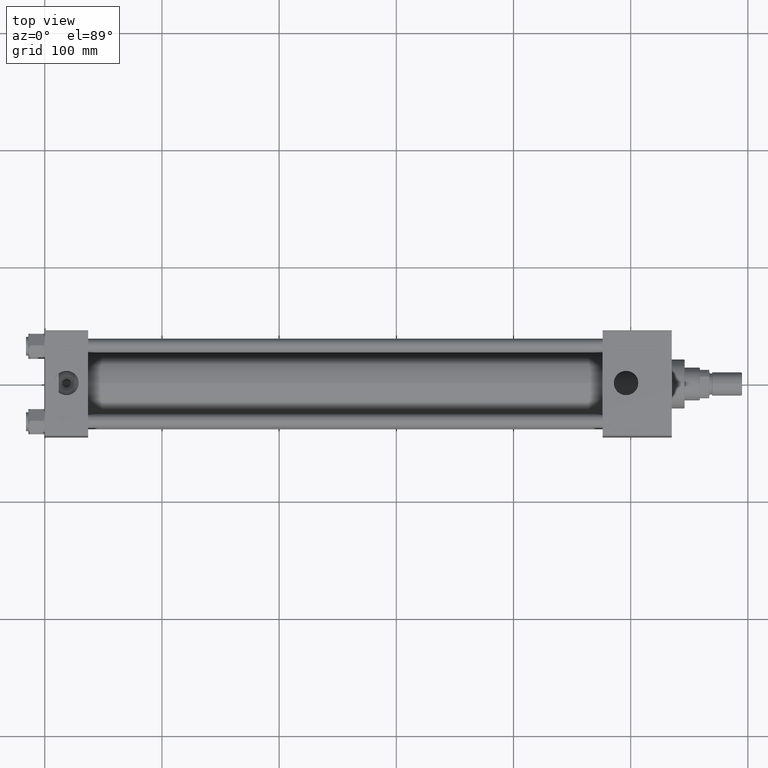
[diagram: clean part render]
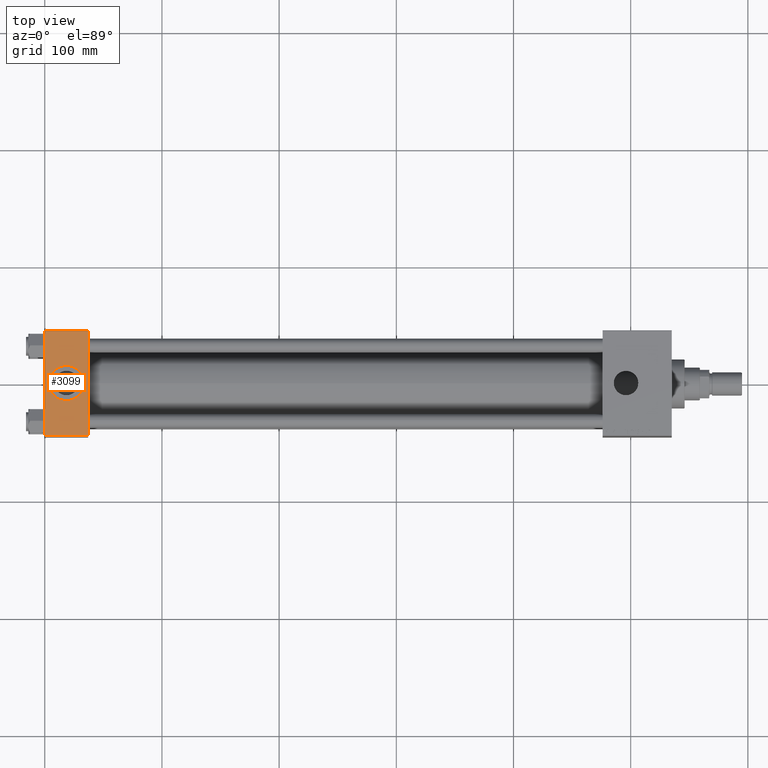
[diagram: same view with one face highlighted and labeled with its STEP entity id]
A machine part, top view. The second image highlights one B-rep face of the part: STEP entity #3099.
In plain terms, the highlighted planar face has unit normal (0, 0, -1).
Its self-contained STEP definition (entity closure, byte-faithful):
#902 = EDGE_CURVE ( 'NONE', #34534, #28438, #28402, .T. ) ;
#3099 = ADVANCED_FACE ( 'NONE', ( #15139, #27682 ), #46658, .F. ) ;
#3265 = VERTEX_POINT ( 'NONE', #45341 ) ;
#3315 = EDGE_CURVE ( 'NONE', #34534, #24242, #41488, .T. ) ;
#3336 = AXIS2_PLACEMENT_3D ( 'NONE', #29658, #49656, #46329 ) ;
#4375 = ORIENTED_EDGE ( 'NONE', *, *, #33456, .F. ) ;
#7387 = VECTOR ( 'NONE', #11167, 1000.000000000000000 ) ;
#10656 = AXIS2_PLACEMENT_3D ( 'NONE', #22517, #38150, #10986 ) ;
#10986 = DIRECTION ( 'NONE',  ( 1.000000000000000000, 0.000000000000000000, 0.000000000000000000 ) ) ;
#11167 = DIRECTION ( 'NONE',  ( 1.000000000000000000, 0.000000000000000000, 0.000000000000000000 ) ) ;
#12156 = VERTEX_POINT ( 'NONE', #21662 ) ;
#12490 = VECTOR ( 'NONE', #21244, 1000.000000000000000 ) ;
#13589 = ORIENTED_EDGE ( 'NONE', *, *, #902, .F. ) ;
#15139 = FACE_BOUND ( 'NONE', #30172, .T. ) ;
#17930 = ORIENTED_EDGE ( 'NONE', *, *, #33953, .T. ) ;
#19747 = DIRECTION ( 'NONE',  ( 0.000000000000000000, 1.541976423090495633E-16, -1.000000000000000000 ) ) ;
#21125 = CARTESIAN_POINT ( 'NONE',  ( 0.000000000000000000, 44.99999999999998579, 45.00000000000001421 ) ) ;
#21244 = DIRECTION ( 'NONE',  ( -1.000000000000000000, 0.000000000000000000, 0.000000000000000000 ) ) ;
#21500 = AXIS2_PLACEMENT_3D ( 'NONE', #34866, #19747, #31014 ) ;
#21662 = CARTESIAN_POINT ( 'NONE',  ( 0.000000000000000000, -44.49999999999995737, 45.00000000000000000 ) ) ;
#22261 = CARTESIAN_POINT ( 'NONE',  ( 0.000000000000000000, 44.49999999999998579, 45.00000000000001421 ) ) ;
#22517 = CARTESIAN_POINT ( 'NONE',  ( 18.50000000000000000, -8.673617379884038628E-15, 45.00000000000000711 ) ) ;
#22950 = CIRCLE ( 'NONE', #10656, 15.00000000000000355 ) ;
#23785 = EDGE_LOOP ( 'NONE', ( #17930, #41923, #13589, #41007 ) ) ;
#23867 = CARTESIAN_POINT ( 'NONE',  ( 37.00000000000000000, -44.49999999999995737, 45.00000000000000000 ) ) ;
#24242 = VERTEX_POINT ( 'NONE', #47058 ) ;
#27682 = FACE_OUTER_BOUND ( 'NONE', #23785, .T. ) ;
#28402 = LINE ( 'NONE', #43793, #45288 ) ;
#28438 = VERTEX_POINT ( 'NONE', #23867 ) ;
#29658 = CARTESIAN_POINT ( 'NONE',  ( 18.50000000000000000, -8.673617379884038628E-15, 45.00000000000000711 ) ) ;
#30172 = EDGE_LOOP ( 'NONE', ( #34572, #4375 ) ) ;
#31014 = DIRECTION ( 'NONE',  ( 0.000000000000000000, 1.000000000000000000, 1.541976423090495633E-16 ) ) ;
#31160 = VECTOR ( 'NONE', #36997, 1000.000000000000000 ) ;
#32754 = EDGE_CURVE ( 'NONE', #12156, #28438, #45773, .T. ) ;
#33024 = VERTEX_POINT ( 'NONE', #33646 ) ;
#33147 = LINE ( 'NONE', #21125, #31160 ) ;
#33456 = EDGE_CURVE ( 'NONE', #3265, #33024, #22950, .T. ) ;
#33600 = CIRCLE ( 'NONE', #3336, 15.00000000000000355 ) ;
#33646 = CARTESIAN_POINT ( 'NONE',  ( 33.50000000000000000, -8.673617379884038628E-15, 45.00000000000000711 ) ) ;
#33953 = EDGE_CURVE ( 'NONE', #24242, #12156, #33147, .T. ) ;
#34289 = EDGE_CURVE ( 'NONE', #33024, #3265, #33600, .T. ) ;
#34534 = VERTEX_POINT ( 'NONE', #40894 ) ;
#34572 = ORIENTED_EDGE ( 'NONE', *, *, #34289, .F. ) ;
#34866 = CARTESIAN_POINT ( 'NONE',  ( 37.00000000000000000, 44.99999999999998579, 45.00000000000001421 ) ) ;
#36997 = DIRECTION ( 'NONE',  ( 0.000000000000000000, -1.000000000000000000, -1.541976423090495387E-16 ) ) ;
#38150 = DIRECTION ( 'NONE',  ( 0.000000000000000000, 0.000000000000000000, 1.000000000000000000 ) ) ;
#38332 = CARTESIAN_POINT ( 'NONE',  ( 37.00000000000000000, -44.49999999999998579, 45.00000000000000000 ) ) ;
#40894 = CARTESIAN_POINT ( 'NONE',  ( 37.00000000000000000, 44.49999999999998579, 45.00000000000001421 ) ) ;
#41007 = ORIENTED_EDGE ( 'NONE', *, *, #3315, .T. ) ;
#41488 = LINE ( 'NONE', #22261, #12490 ) ;
#41923 = ORIENTED_EDGE ( 'NONE', *, *, #32754, .T. ) ;
#43793 = CARTESIAN_POINT ( 'NONE',  ( 37.00000000000000000, 44.99999999999998579, 45.00000000000001421 ) ) ;
#45288 = VECTOR ( 'NONE', #48129, 1000.000000000000000 ) ;
#45341 = CARTESIAN_POINT ( 'NONE',  ( 3.499999999999997780, -6.836647181163008250E-15, 45.00000000000000711 ) ) ;
#45773 = LINE ( 'NONE', #38332, #7387 ) ;
#46329 = DIRECTION ( 'NONE',  ( 1.000000000000000000, 0.000000000000000000, 0.000000000000000000 ) ) ;
#46658 = PLANE ( 'NONE',  #21500 ) ;
#47058 = CARTESIAN_POINT ( 'NONE',  ( 0.000000000000000000, 44.49999999999998579, 45.00000000000001421 ) ) ;
#48129 = DIRECTION ( 'NONE',  ( 0.000000000000000000, -1.000000000000000000, -1.541976423090495387E-16 ) ) ;
#49656 = DIRECTION ( 'NONE',  ( 0.000000000000000000, 0.000000000000000000, 1.000000000000000000 ) ) ;